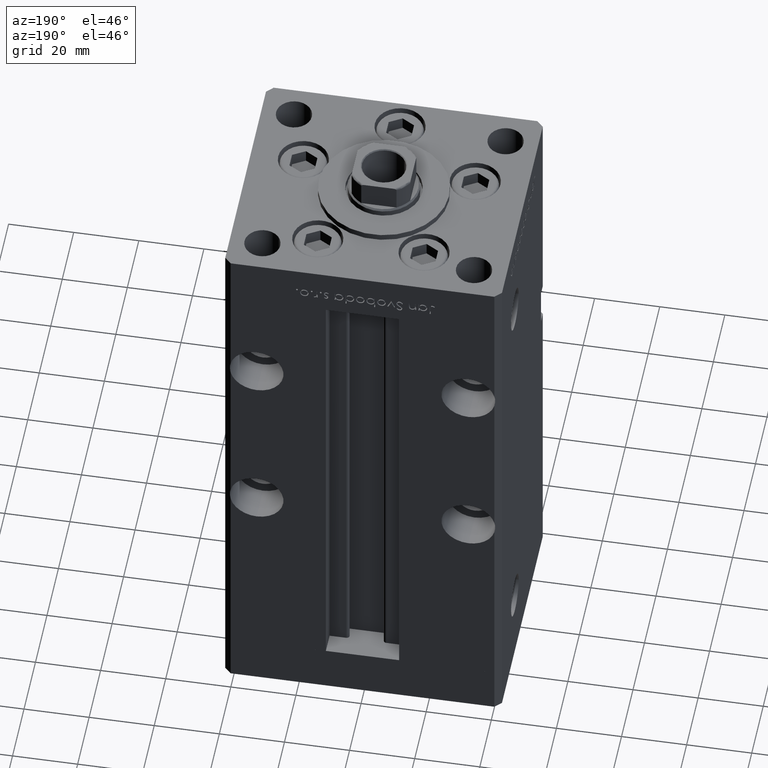
[diagram: clean part render]
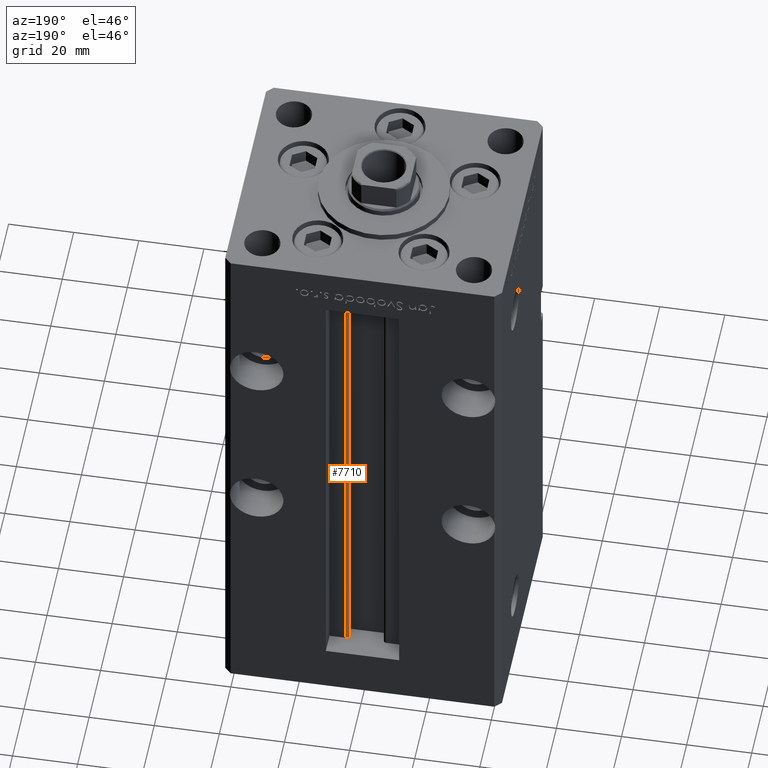
[diagram: same view with one face highlighted and labeled with its STEP entity id]
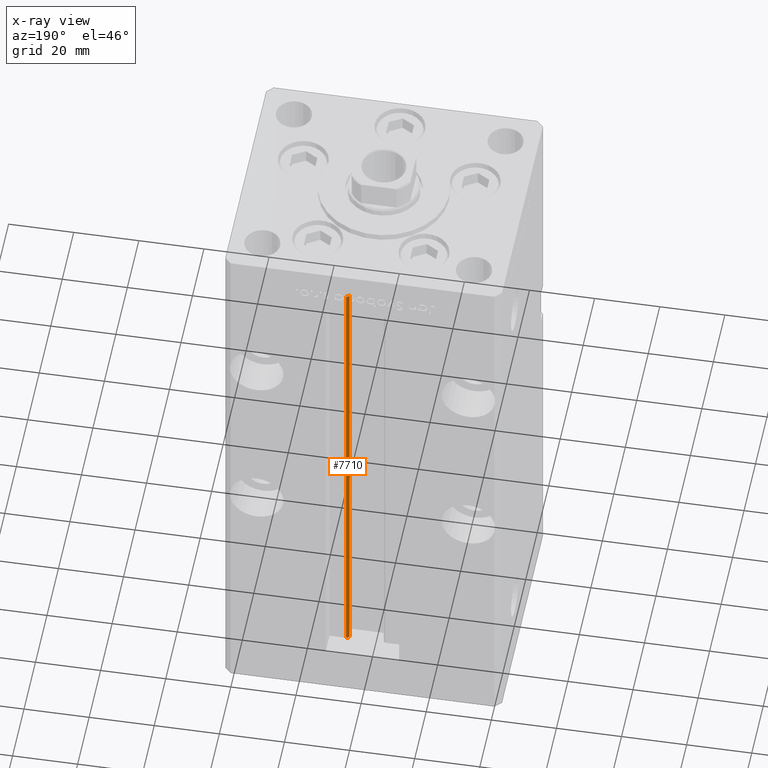
[diagram: x-ray of the same camera — body ghosted, the highlighted face saturated]
A machine part, auxiliary view. The second image highlights one B-rep face of the part: STEP entity #7710.
The next image is the same camera in x-ray: the body ghosted, the highlighted face saturated — about 0% of this face is hidden behind the body in this view.
In plain terms, the highlighted cylindrical surface (edge-blend (fillet) strip) has radius 0.9333 mm, axis along (0, 0, 1).
Its self-contained STEP definition (entity closure, byte-faithful):
#1108 = AXIS2_PLACEMENT_3D ( 'NONE', #4089, #32046, #16196 ) ;
#1279 = LINE ( 'NONE', #9060, #11078 ) ;
#1635 = AXIS2_PLACEMENT_3D ( 'NONE', #29161, #40722, #3906 ) ;
#1710 = VECTOR ( 'NONE', #31153, 1000.000000000000000 ) ;
#3906 = DIRECTION ( 'NONE',  ( 1.000000000000000000, 0.000000000000000000, 0.000000000000000000 ) ) ;
#4089 = CARTESIAN_POINT ( 'NONE',  ( 6.183333333333997928, 30.06666666666599852, 0.000000000000000000 ) ) ;
#7710 = ADVANCED_FACE ( 'NONE', ( #50296 ), #13472, .T. ) ;
#8358 = EDGE_CURVE ( 'NONE', #28591, #34864, #25972, .T. ) ;
#9060 = CARTESIAN_POINT ( 'NONE',  ( 6.183333333333997928, 31.00000000000000000, 0.000000000000000000 ) ) ;
#11078 = VECTOR ( 'NONE', #17411, 1000.000000000000000 ) ;
#11156 = CARTESIAN_POINT ( 'NONE',  ( 6.183333333333997928, 31.00000000000000000, 0.000000000000000000 ) ) ;
#13314 = ORIENTED_EDGE ( 'NONE', *, *, #38885, .F. ) ;
#13472 = CYLINDRICAL_SURFACE ( 'NONE', #24286, 0.9333333333340008142 ) ;
#14680 = CARTESIAN_POINT ( 'NONE',  ( 6.183333333333997928, 31.00000000000000000, 148.5000000000000000 ) ) ;
#16196 = DIRECTION ( 'NONE',  ( 1.000000000000000000, 0.000000000000000000, 0.000000000000000000 ) ) ;
#17411 = DIRECTION ( 'NONE',  ( -0.000000000000000000, -0.000000000000000000, 1.000000000000000000 ) ) ;
#17541 = CARTESIAN_POINT ( 'NONE',  ( 5.375042956467947164, 29.59999999999899245, 0.000000000000000000 ) ) ;
#22326 = CARTESIAN_POINT ( 'NONE',  ( 6.183333333333997928, 30.06666666666599852, 0.000000000000000000 ) ) ;
#23480 = CARTESIAN_POINT ( 'NONE',  ( 5.375042956467946276, 29.59999999999899600, 148.5000000000000000 ) ) ;
#24286 = AXIS2_PLACEMENT_3D ( 'NONE', #22326, #29864, #38447 ) ;
#25410 = VERTEX_POINT ( 'NONE', #23480 ) ;
#25972 = CIRCLE ( 'NONE', #1108, 0.9333333333340008142 ) ;
#27521 = ORIENTED_EDGE ( 'NONE', *, *, #8358, .F. ) ;
#28591 = VERTEX_POINT ( 'NONE', #46414 ) ;
#29161 = CARTESIAN_POINT ( 'NONE',  ( 6.183333333333997928, 30.06666666666599852, 148.5000000000000000 ) ) ;
#29864 = DIRECTION ( 'NONE',  ( -0.000000000000000000, -0.000000000000000000, 1.000000000000000000 ) ) ;
#31153 = DIRECTION ( 'NONE',  ( -0.000000000000000000, -0.000000000000000000, 1.000000000000000000 ) ) ;
#32046 = DIRECTION ( 'NONE',  ( -0.000000000000000000, -0.000000000000000000, -1.000000000000000000 ) ) ;
#32058 = ORIENTED_EDGE ( 'NONE', *, *, #34184, .T. ) ;
#34053 = VERTEX_POINT ( 'NONE', #14680 ) ;
#34184 = EDGE_CURVE ( 'NONE', #25410, #34053, #49717, .T. ) ;
#34864 = VERTEX_POINT ( 'NONE', #11156 ) ;
#38335 = ORIENTED_EDGE ( 'NONE', *, *, #41292, .T. ) ;
#38447 = DIRECTION ( 'NONE',  ( 1.000000000000000000, 0.000000000000000000, 0.000000000000000000 ) ) ;
#38885 = EDGE_CURVE ( 'NONE', #34864, #34053, #1279, .T. ) ;
#40722 = DIRECTION ( 'NONE',  ( 0.000000000000000000, 0.000000000000000000, -1.000000000000000000 ) ) ;
#41292 = EDGE_CURVE ( 'NONE', #28591, #25410, #51595, .T. ) ;
#46414 = CARTESIAN_POINT ( 'NONE',  ( 5.375042956467947164, 29.59999999999899245, 0.000000000000000000 ) ) ;
#49717 = CIRCLE ( 'NONE', #1635, 0.9333333333340008142 ) ;
#50296 = FACE_OUTER_BOUND ( 'NONE', #52189, .T. ) ;
#51595 = LINE ( 'NONE', #17541, #1710 ) ;
#52189 = EDGE_LOOP ( 'NONE', ( #13314, #27521, #38335, #32058 ) ) ;